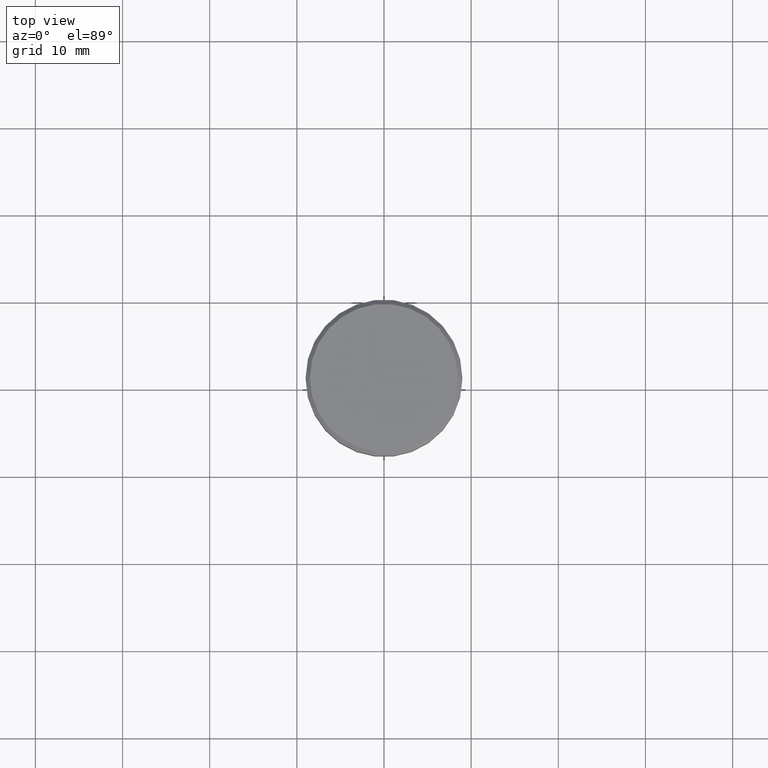
[diagram: clean part render]
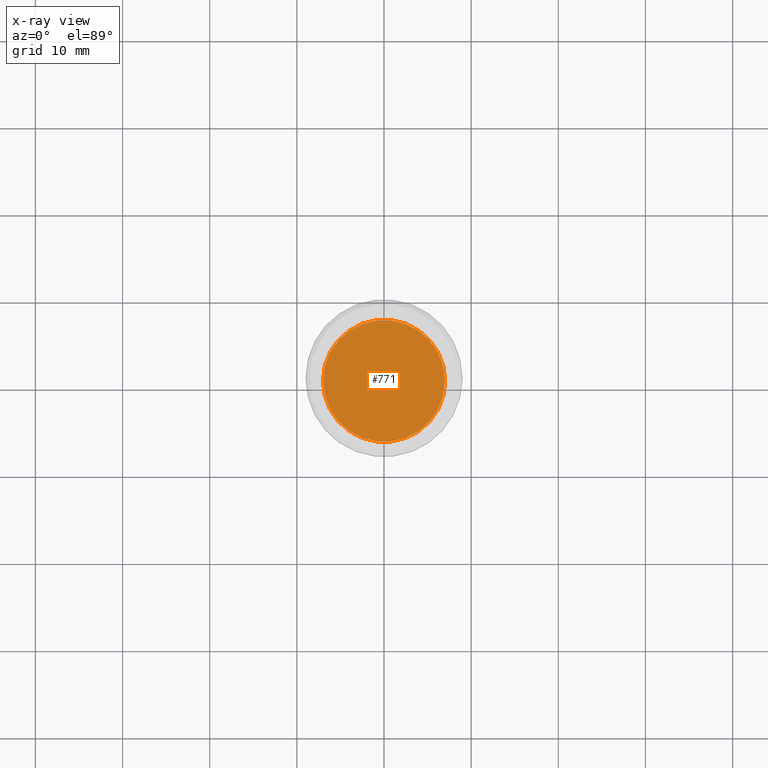
[diagram: x-ray — body ghosted, one internal face saturated and labeled with its STEP entity id]
A machine part, top view, then the same camera in x-ray: the body is ghosted and one INTERNAL B-rep face — a face not visible from any outside direction — is saturated and labeled: STEP entity #771.
In plain terms, the highlighted planar face has unit normal (0, 0, -1).
Its self-contained STEP definition (entity closure, byte-faithful):
#16 = DIRECTION ( 'NONE',  ( 1.000000000000000000, 0.000000000000000000, 0.000000000000000000 ) ) ;
#30 = AXIS2_PLACEMENT_3D ( 'NONE', #599, #101, #754 ) ;
#53 = DIRECTION ( 'NONE',  ( 0.000000000000000000, 0.000000000000000000, -1.000000000000000000 ) ) ;
#101 = DIRECTION ( 'NONE',  ( -0.000000000000000000, -0.000000000000000000, 1.000000000000000000 ) ) ;
#129 = AXIS2_PLACEMENT_3D ( 'NONE', #737, #53, #475 ) ;
#256 = ORIENTED_EDGE ( 'NONE', *, *, #955, .T. ) ;
#304 = CIRCLE ( 'NONE', #830, 7.000000000000000000 ) ;
#314 = FACE_OUTER_BOUND ( 'NONE', #552, .T. ) ;
#316 = VERTEX_POINT ( 'NONE', #1048 ) ;
#413 = CARTESIAN_POINT ( 'NONE',  ( 7.000000000000000000, 0.000000000000000000, -20.00000000000000000 ) ) ;
#453 = ORIENTED_EDGE ( 'NONE', *, *, #578, .T. ) ;
#475 = DIRECTION ( 'NONE',  ( -1.000000000000000000, 0.000000000000000000, -0.000000000000000000 ) ) ;
#493 = PLANE ( 'NONE',  #129 ) ;
#552 = EDGE_LOOP ( 'NONE', ( #256, #453 ) ) ;
#578 = EDGE_CURVE ( 'NONE', #316, #707, #304, .T. ) ;
#593 = CARTESIAN_POINT ( 'NONE',  ( 0.000000000000000000, 0.000000000000000000, -20.00000000000000000 ) ) ;
#599 = CARTESIAN_POINT ( 'NONE',  ( 0.000000000000000000, 0.000000000000000000, -20.00000000000000000 ) ) ;
#707 = VERTEX_POINT ( 'NONE', #413 ) ;
#737 = CARTESIAN_POINT ( 'NONE',  ( 0.000000000000000000, -3.469446951953614189E-15, -20.00000000000000000 ) ) ;
#754 = DIRECTION ( 'NONE',  ( 1.000000000000000000, 0.000000000000000000, 0.000000000000000000 ) ) ;
#771 = ADVANCED_FACE ( 'NONE', ( #314 ), #493, .F. ) ;
#826 = DIRECTION ( 'NONE',  ( -0.000000000000000000, -0.000000000000000000, 1.000000000000000000 ) ) ;
#830 = AXIS2_PLACEMENT_3D ( 'NONE', #593, #826, #16 ) ;
#832 = CIRCLE ( 'NONE', #30, 7.000000000000000000 ) ;
#955 = EDGE_CURVE ( 'NONE', #707, #316, #832, .T. ) ;
#1048 = CARTESIAN_POINT ( 'NONE',  ( -7.000000000000000000, 8.572527594031472204E-16, -20.00000000000000000 ) ) ;